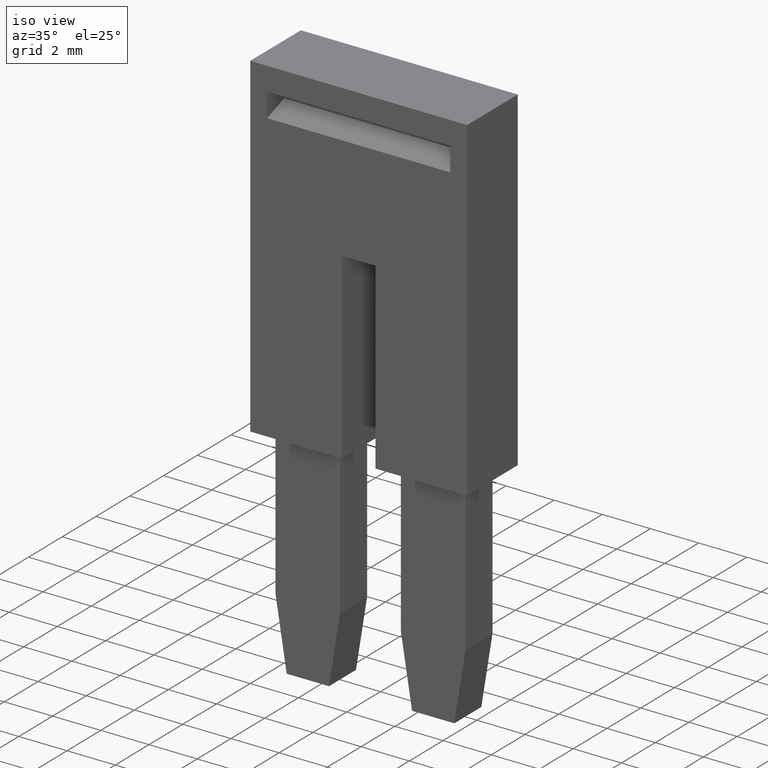
[diagram: clean part render]
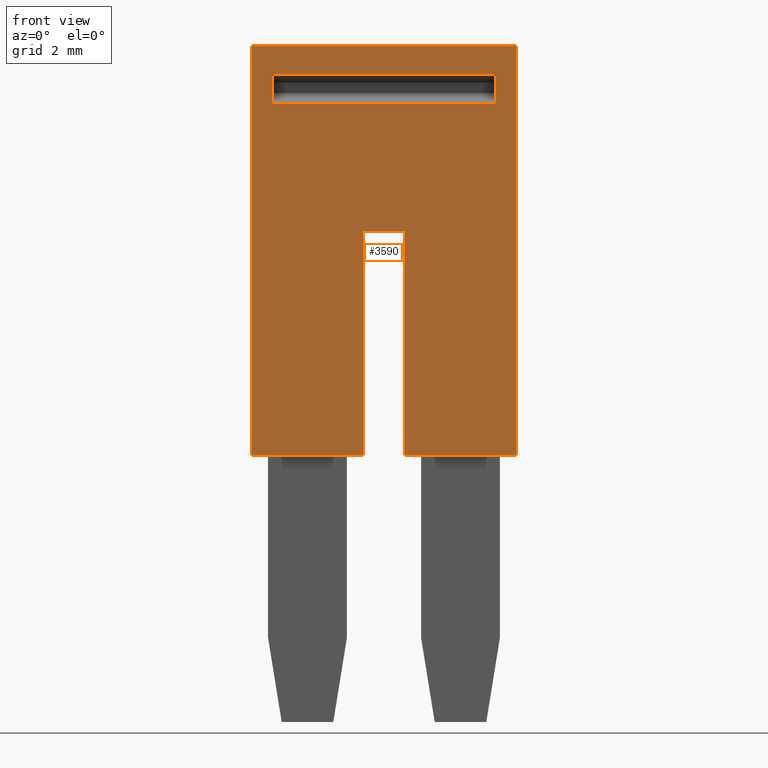
[diagram: tour spotlight — one face highlighted and labeled with its STEP entity id]
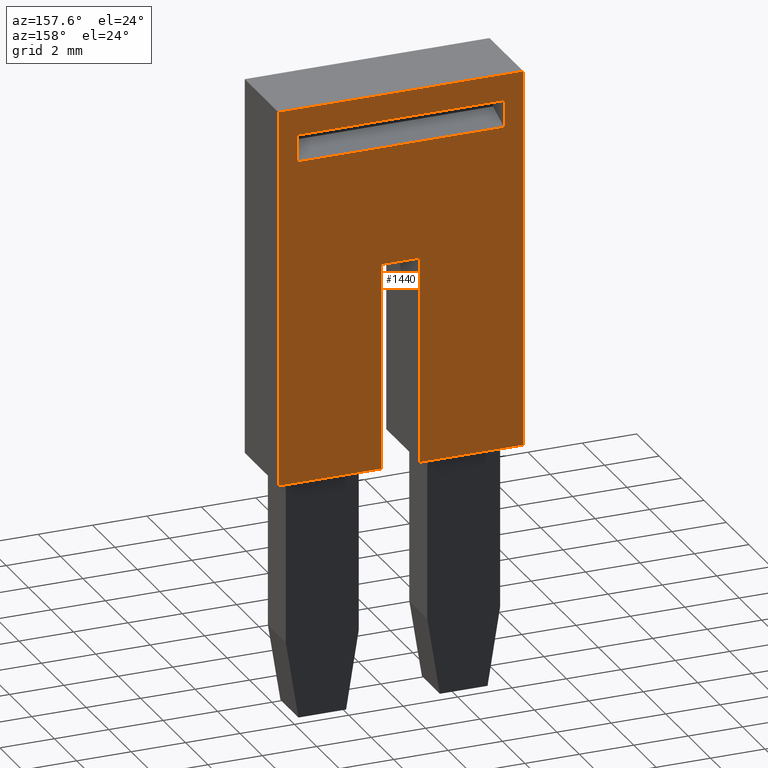
[diagram: tour spotlight — one face highlighted and labeled with its STEP entity id]
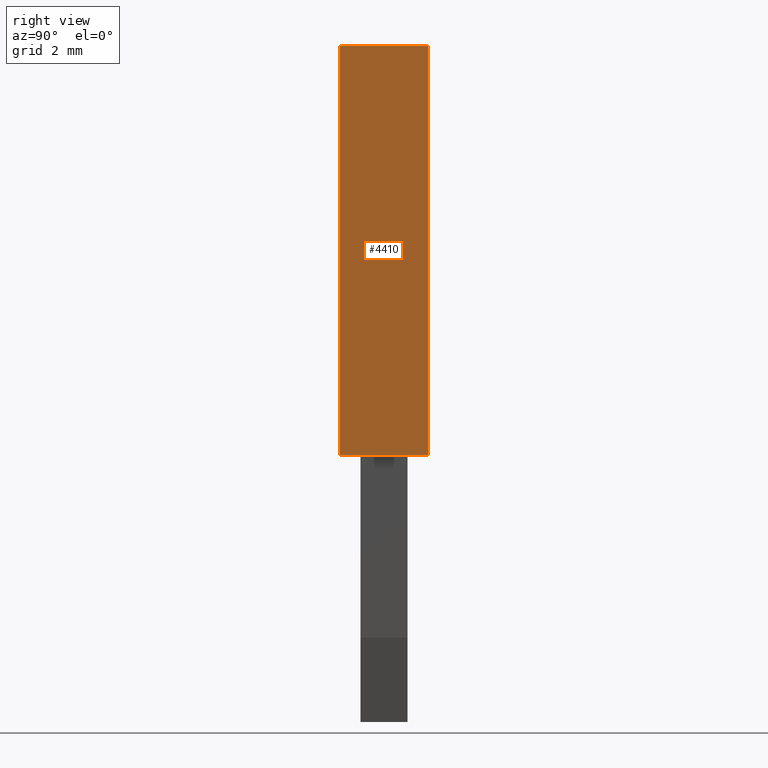
[diagram: tour spotlight — one face highlighted and labeled with its STEP entity id]
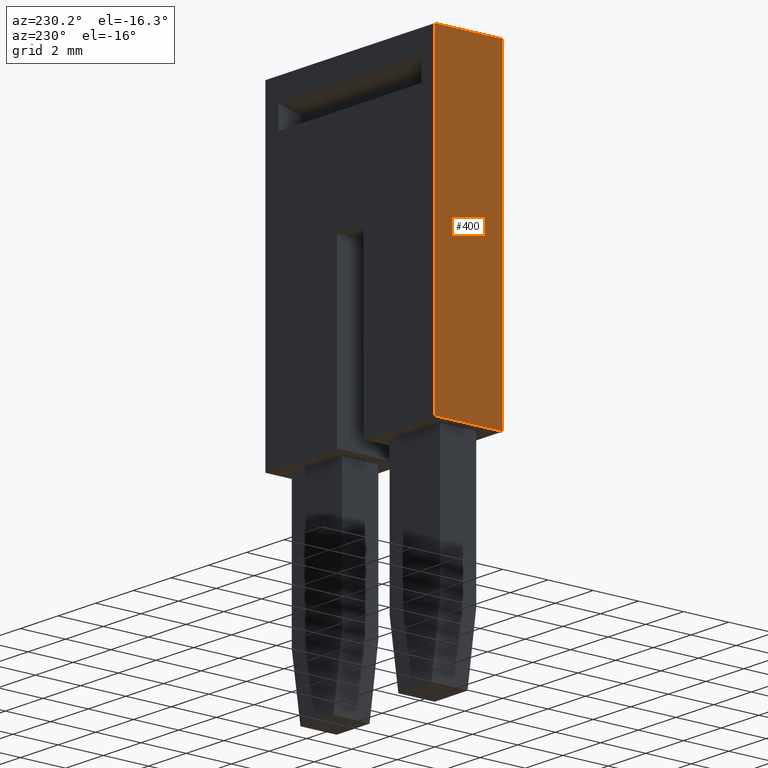
[diagram: tour spotlight — one face highlighted and labeled with its STEP entity id]
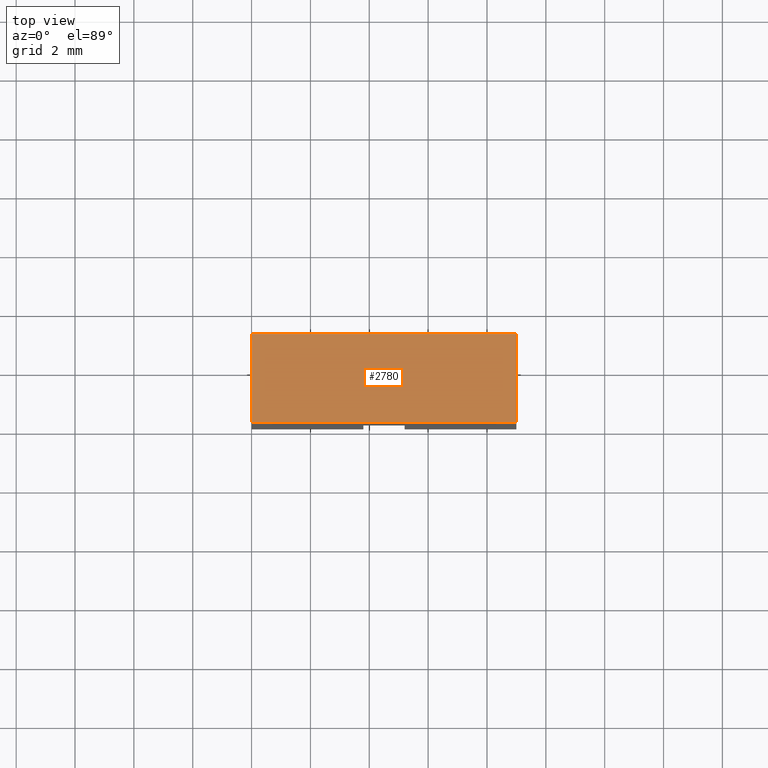
[diagram: tour spotlight — one face highlighted and labeled with its STEP entity id]
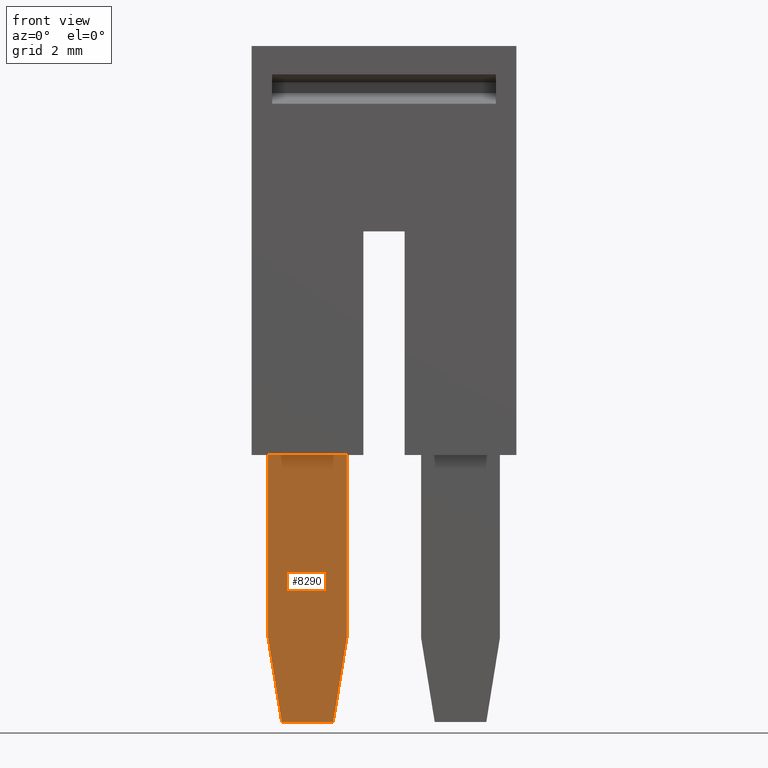
[diagram: tour spotlight — one face highlighted and labeled with its STEP entity id]
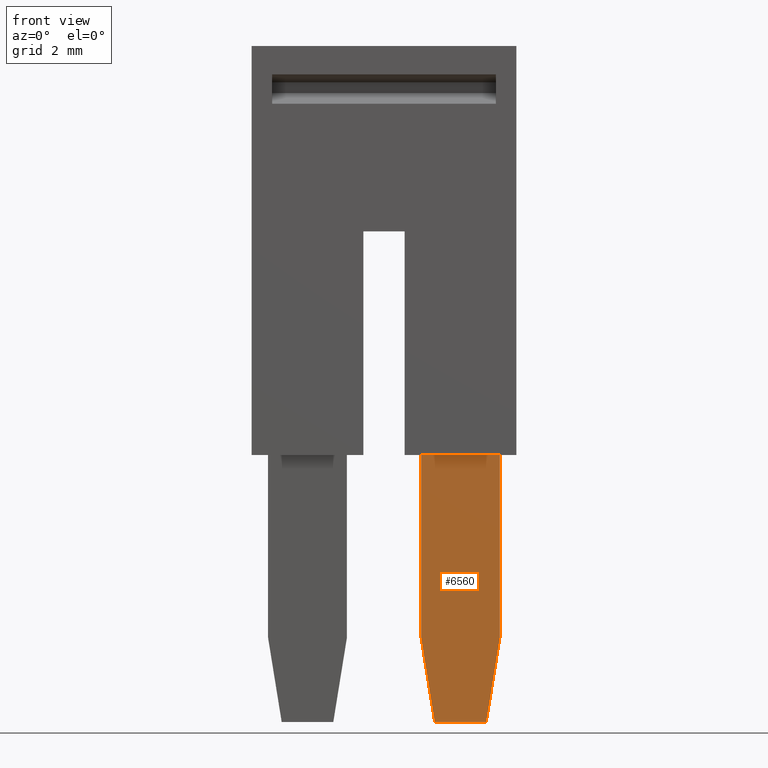
[diagram: tour spotlight — one face highlighted and labeled with its STEP entity id]
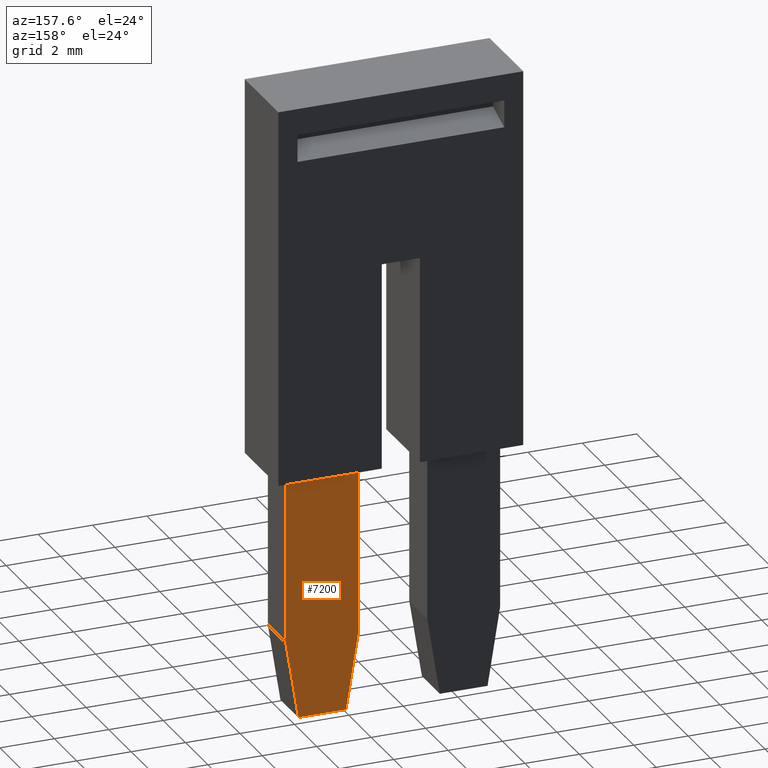
[diagram: tour spotlight — one face highlighted and labeled with its STEP entity id]
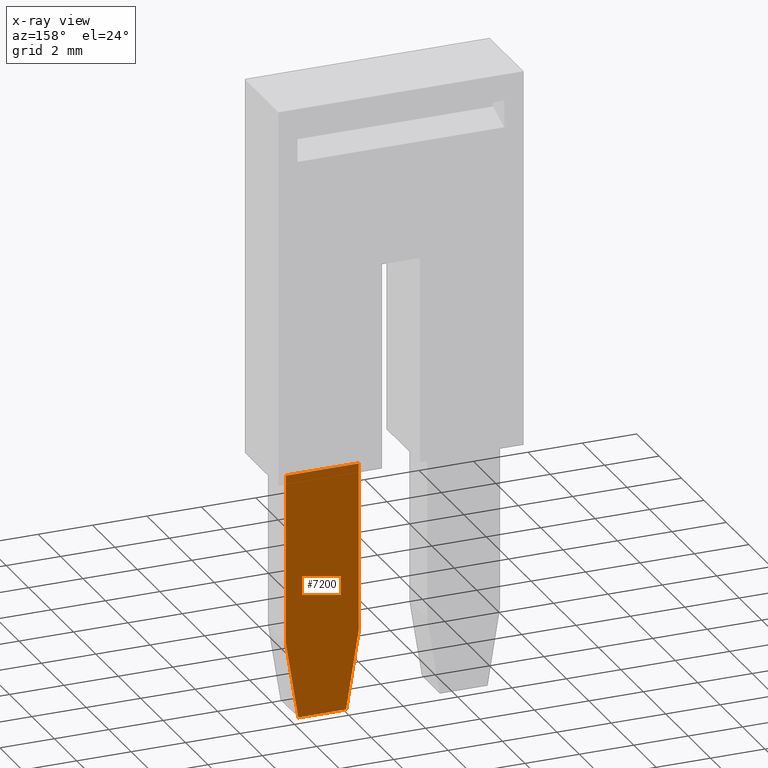
[diagram: x-ray of the same camera — body ghosted, this tour face saturated]
A machine part: a face-by-face anatomy tour. The part has 34 B-rep faces; the first image is the clean iso view, then the 8 largest visible faces are spotlighted one at a time (largest first), each with its STEP entity span.

Face 1 — front view, entity #3590. In plain terms, the highlighted planar face has unit normal (0, 1, 0).
Definition (entity closure, byte-faithful):
#200=CARTESIAN_POINT('',(2.6071672216846,-9.17500000000056,
49.3599999999988));
#210=VERTEX_POINT('',#200);
#240=CARTESIAN_POINT('',(2.60716722168503,-12.6051240000002,
49.3599999999988));
#250=DIRECTION('',(1.26010313294955E-13,-1.,-3.08148791101716E-33));
#260=VECTOR('',#250,1.);
#270=LINE('',#240,#260);
#280=CARTESIAN_POINT('',(2.60716722168635,-23.0750000000006,
49.3599999999988));
#290=VERTEX_POINT('',#280);
#300=EDGE_CURVE('',#210,#290,#270,.T.);
#1570=CARTESIAN_POINT('',(2.6071672216854,-15.4750000000006,
60.6450159999975));
#1580=DIRECTION('',(0.,-3.08148791101677E-33,1.));
#1590=VECTOR('',#1580,1.);
#1600=LINE('',#1570,#1590);
#1610=CARTESIAN_POINT('',(2.6071672216854,-15.4750000000006,
53.1599999999988));
#1620=VERTEX_POINT('',#1610);
#1630=CARTESIAN_POINT('',(2.6071672216854,-15.4750000000006,
54.5599999999988));
#1640=VERTEX_POINT('',#1630);
#1650=EDGE_CURVE('',#1620,#1640,#1600,.T.);
#2310=CARTESIAN_POINT('',(2.60716722168635,-23.0750000000006,
60.6450159999975));
#2320=DIRECTION('',(0.,3.08148791101677E-33,-1.));
#2330=VECTOR('',#2320,1.);
#2340=LINE('',#2310,#2330);
#2350=CARTESIAN_POINT('',(2.60716722168635,-23.0750000000006,
53.1599999999988));
#2360=VERTEX_POINT('',#2350);
#2370=EDGE_CURVE('',#2360,#290,#2340,.T.);
#2650=CARTESIAN_POINT('',(2.6071672216846,-9.17500000000056,
58.3599999999988));
#2660=VERTEX_POINT('',#2650);
#2690=CARTESIAN_POINT('',(2.6071672216846,-9.17500000000056,
60.6450159999975));
#2700=DIRECTION('',(0.,3.08148791101677E-33,-1.));
#2710=VECTOR('',#2700,1.);
#2720=LINE('',#2690,#2710);
#2730=EDGE_CURVE('',#2660,#210,#2720,.T.);
#2860=CARTESIAN_POINT('',(2.60716722168436,-7.23265100000016,
24.0999898000483));
#2870=DIRECTION('',(1.,1.26010313294955E-13,3.88299257081841E-46));
#2880=DIRECTION('',(1.26010313294955E-13,-1.,-3.08148791101716E-33));
#2890=AXIS2_PLACEMENT_3D('',#2860,#2870,#2880);
#2900=PLANE('',#2890);
#2910=CARTESIAN_POINT('',(2.60716722168485,-11.1389702342668,47.074984))
;
#2920=DIRECTION('',(-5.09267671146659E-30,4.04088134360551E-17,-1.));
#2930=VECTOR('',#2920,1.);
#2940=LINE('',#2910,#2930);
#2950=CARTESIAN_POINT('',(2.60716722168485,-11.1389702342668,
57.6599999999988));
#2960=VERTEX_POINT('',#2950);
#2970=CARTESIAN_POINT('',(2.60716722168485,-11.1389702342668,
50.0599999999988));
#2980=VERTEX_POINT('',#2970);
#2990=EDGE_CURVE('',#2960,#2980,#2940,.T.);
#3000=ORIENTED_EDGE('',*,*,#2990,.T.);
#3010=CARTESIAN_POINT('',(2.607167221685,-12.305124,57.6599999999988));
#3020=DIRECTION('',(1.26010313294955E-13,-1.,0.));
#3030=VECTOR('',#3020,1.);
#3040=LINE('',#3010,#3030);
#3050=CARTESIAN_POINT('',(2.60716722168472,-10.141025403785,
57.6599999999988));
#3060=VERTEX_POINT('',#3050);
#3070=EDGE_CURVE('',#3060,#2960,#3040,.T.);
#3080=ORIENTED_EDGE('',*,*,#3070,.T.);
#3090=CARTESIAN_POINT('',(2.60716722168472,-10.141025403785,47.074984));
#3100=DIRECTION('',(-3.74847446553773E-30,2.97483362866747E-17,1.));
#3110=VECTOR('',#3100,1.);
#3120=LINE('',#3090,#3110);
#3130=CARTESIAN_POINT('',(2.60716722168472,-10.141025403785,
50.0599999999988));
#3140=VERTEX_POINT('',#3130);
#3150=EDGE_CURVE('',#3140,#3060,#3120,.T.);
#3160=ORIENTED_EDGE('',*,*,#3150,.T.);
#3170=CARTESIAN_POINT('',(2.607167221685,-12.305124,50.0599999999988));
#3180=DIRECTION('',(-1.26010313294955E-13,1.,0.));
#3190=VECTOR('',#3180,1.);
#3200=LINE('',#3170,#3190);
#3210=EDGE_CURVE('',#2980,#3140,#3200,.T.);
#3220=ORIENTED_EDGE('',*,*,#3210,.T.);
#3230=EDGE_LOOP('',(#3220,#3160,#3080,#3000));
#3240=FACE_BOUND('',#3230,.T.);
#3250=CARTESIAN_POINT('',(2.60716722168503,-12.6051240000002,
58.3599999999988));
#3260=DIRECTION('',(1.26010313294955E-13,-1.,-3.08148791101716E-33));
#3270=VECTOR('',#3260,1.);
#3280=LINE('',#3250,#3270);
#3290=CARTESIAN_POINT('',(2.60716722168635,-23.0750000000006,
58.3599999999988));
#3300=VERTEX_POINT('',#3290);
#3310=EDGE_CURVE('',#2660,#3300,#3280,.T.);
#3320=ORIENTED_EDGE('',*,*,#3310,.F.);
#3330=CARTESIAN_POINT('',(2.60716722168635,-23.0750000000006,
60.6450159999975));
#3340=DIRECTION('',(0.,3.08148791101677E-33,-1.));
#3350=VECTOR('',#3340,1.);
#3360=LINE('',#3330,#3350);
#3370=CARTESIAN_POINT('',(2.60716722168635,-23.0750000000006,
54.5599999999988));
#3380=VERTEX_POINT('',#3370);
#3390=EDGE_CURVE('',#3300,#3380,#3360,.T.);
#3400=ORIENTED_EDGE('',*,*,#3390,.F.);
#3410=CARTESIAN_POINT('',(2.60716722168503,-12.6051240000002,
54.5599999999988));
#3420=DIRECTION('',(1.26010313294955E-13,-1.,-3.08148791101716E-33));
#3430=VECTOR('',#3420,1.);
#3440=LINE('',#3410,#3430);
#3450=EDGE_CURVE('',#1640,#3380,#3440,.T.);
#3460=ORIENTED_EDGE('',*,*,#3450,.T.);
#3470=ORIENTED_EDGE('',*,*,#1650,.T.);
#3480=CARTESIAN_POINT('',(2.60716722168503,-12.6051240000002,
53.1599999999988));
#3490=DIRECTION('',(1.26010313294955E-13,-1.,-3.08148791101716E-33));
#3500=VECTOR('',#3490,1.);
#3510=LINE('',#3480,#3500);
#3520=EDGE_CURVE('',#1620,#2360,#3510,.T.);
#3530=ORIENTED_EDGE('',*,*,#3520,.F.);
#3540=ORIENTED_EDGE('',*,*,#2370,.F.);
#3550=ORIENTED_EDGE('',*,*,#300,.T.);
#3560=ORIENTED_EDGE('',*,*,#2730,.T.);
#3570=EDGE_LOOP('',(#3560,#3550,#3540,#3530,#3470,#3460,#3400,#3320));
#3580=FACE_OUTER_BOUND('',#3570,.T.);
#3590=ADVANCED_FACE('',(#3240,#3580),#2900,.F.);

Face 2 — auxiliary view, entity #1440. In plain terms, the highlighted planar face has unit normal (0, 1, 0).
Definition (entity closure, byte-faithful):
#60=CARTESIAN_POINT('',(5.60716722168504,-12.6051239999998,
49.3599999999988));
#70=DIRECTION('',(1.26010313294955E-13,-1.,-3.08148791101716E-33));
#80=VECTOR('',#70,1.);
#90=LINE('',#60,#80);
#100=CARTESIAN_POINT('',(5.6071672216846,-9.17500000000018,
49.3599999999988));
#110=VERTEX_POINT('',#100);
#120=CARTESIAN_POINT('',(5.60716722168636,-23.0750000000002,
49.3599999999988));
#130=VERTEX_POINT('',#120);
#140=EDGE_CURVE('',#110,#130,#90,.T.);
#480=CARTESIAN_POINT('',(5.60716722168476,-10.4163739892137,
49.6255163824959));
#490=DIRECTION('',(1.,1.26010313294955E-13,3.88299257081841E-46));
#500=DIRECTION('',(1.26010313294955E-13,-1.,-3.08148791101716E-33));
#510=AXIS2_PLACEMENT_3D('',#480,#490,#500);
#520=PLANE('',#510);
#530=CARTESIAN_POINT('',(5.60716722168485,-11.1389702342664,47.074984));
#540=DIRECTION('',(5.08939746052553E-30,-4.04088134360551E-17,-1.));
#550=VECTOR('',#540,1.);
#560=LINE('',#530,#550);
#570=CARTESIAN_POINT('',(5.60716722168485,-11.1389702342664,
57.6599999999988));
#580=VERTEX_POINT('',#570);
#590=CARTESIAN_POINT('',(5.60716722168485,-11.1389702342664,
50.0599999999988));
#600=VERTEX_POINT('',#590);
#610=EDGE_CURVE('',#580,#600,#560,.T.);
#620=ORIENTED_EDGE('',*,*,#610,.F.);
#630=CARTESIAN_POINT('',(5.607167221685,-12.305124,50.0599999999988));
#640=DIRECTION('',(-1.26010313294955E-13,1.,0.));
#650=VECTOR('',#640,1.);
#660=LINE('',#630,#650);
#670=CARTESIAN_POINT('',(5.60716722168473,-10.1410254037846,
50.0599999999988));
#680=VERTEX_POINT('',#670);
#690=EDGE_CURVE('',#600,#680,#660,.T.);
#700=ORIENTED_EDGE('',*,*,#690,.F.);
#710=CARTESIAN_POINT('',(5.60716722168473,-10.1410254037846,47.074984));
#720=DIRECTION('',(3.74687937002048E-30,-2.97483362866748E-17,1.));
#730=VECTOR('',#720,1.);
#740=LINE('',#710,#730);
#750=CARTESIAN_POINT('',(5.60716722168473,-10.1410254037846,
57.6599999999988));
#760=VERTEX_POINT('',#750);
#770=EDGE_CURVE('',#680,#760,#740,.T.);
#780=ORIENTED_EDGE('',*,*,#770,.F.);
#790=CARTESIAN_POINT('',(5.607167221685,-12.305124,57.6599999999988));
#800=DIRECTION('',(1.26010313294955E-13,-1.,0.));
#810=VECTOR('',#800,1.);
#820=LINE('',#790,#810);
#830=EDGE_CURVE('',#760,#580,#820,.T.);
#840=ORIENTED_EDGE('',*,*,#830,.F.);
#850=EDGE_LOOP('',(#840,#780,#700,#620));
#860=FACE_BOUND('',#850,.T.);
#870=ORIENTED_EDGE('',*,*,#140,.F.);
#880=CARTESIAN_POINT('',(5.60716722168636,-23.0750000000002,
60.6450159999975));
#890=DIRECTION('',(0.,3.08148791101677E-33,-1.));
#900=VECTOR('',#890,1.);
#910=LINE('',#880,#900);
#920=CARTESIAN_POINT('',(5.60716722168636,-23.0750000000002,
53.1599999999988));
#930=VERTEX_POINT('',#920);
#940=EDGE_CURVE('',#930,#130,#910,.T.);
#950=ORIENTED_EDGE('',*,*,#940,.T.);
#960=CARTESIAN_POINT('',(5.60716722168504,-12.6051239999998,
53.1599999999988));
#970=DIRECTION('',(1.26010313294955E-13,-1.,-3.08148791101716E-33));
#980=VECTOR('',#970,1.);
#990=LINE('',#960,#980);
#1000=CARTESIAN_POINT('',(5.6071672216854,-15.4750000000002,
53.1599999999988));
#1010=VERTEX_POINT('',#1000);
#1020=EDGE_CURVE('',#1010,#930,#990,.T.);
#1030=ORIENTED_EDGE('',*,*,#1020,.T.);
#1040=CARTESIAN_POINT('',(5.6071672216854,-15.4750000000002,
60.6450159999975));
#1050=DIRECTION('',(0.,-3.08148791101677E-33,1.));
#1060=VECTOR('',#1050,1.);
#1070=LINE('',#1040,#1060);
#1080=CARTESIAN_POINT('',(5.6071672216854,-15.4750000000002,
54.5599999999988));
#1090=VERTEX_POINT('',#1080);
#1100=EDGE_CURVE('',#1010,#1090,#1070,.T.);
#1110=ORIENTED_EDGE('',*,*,#1100,.F.);
#1120=CARTESIAN_POINT('',(5.60716722168504,-12.6051239999998,
54.5599999999988));
#1130=DIRECTION('',(1.26010313294955E-13,-1.,-3.08148791101716E-33));
#1140=VECTOR('',#1130,1.);
#1150=LINE('',#1120,#1140);
#1160=CARTESIAN_POINT('',(5.60716722168636,-23.0750000000002,
54.5599999999988));
#1170=VERTEX_POINT('',#1160);
#1180=EDGE_CURVE('',#1090,#1170,#1150,.T.);
#1190=ORIENTED_EDGE('',*,*,#1180,.F.);
#1200=CARTESIAN_POINT('',(5.60716722168636,-23.0750000000002,
60.6450159999975));
#1210=DIRECTION('',(0.,3.08148791101677E-33,-1.));
#1220=VECTOR('',#1210,1.);
#1230=LINE('',#1200,#1220);
#1240=CARTESIAN_POINT('',(5.60716722168636,-23.0750000000002,
58.3599999999988));
#1250=VERTEX_POINT('',#1240);
#1260=EDGE_CURVE('',#1250,#1170,#1230,.T.);
#1270=ORIENTED_EDGE('',*,*,#1260,.T.);
#1280=CARTESIAN_POINT('',(5.60716722168504,-12.6051239999998,
58.3599999999988));
#1290=DIRECTION('',(1.26010313294955E-13,-1.,-3.08148791101716E-33));
#1300=VECTOR('',#1290,1.);
#1310=LINE('',#1280,#1300);
#1320=CARTESIAN_POINT('',(5.6071672216846,-9.17500000000018,
58.3599999999988));
#1330=VERTEX_POINT('',#1320);
#1340=EDGE_CURVE('',#1330,#1250,#1310,.T.);
#1350=ORIENTED_EDGE('',*,*,#1340,.T.);
#1360=CARTESIAN_POINT('',(5.60716722168461,-9.17500000000018,
60.6450159999975));
#1370=DIRECTION('',(0.,-3.08148791101677E-33,1.));
#1380=VECTOR('',#1370,1.);
#1390=LINE('',#1360,#1380);
#1400=EDGE_CURVE('',#110,#1330,#1390,.T.);
#1410=ORIENTED_EDGE('',*,*,#1400,.T.);
#1420=EDGE_LOOP('',(#1410,#1350,#1270,#1190,#1110,#1030,#950,#870));
#1430=FACE_OUTER_BOUND('',#1420,.T.);
#1440=ADVANCED_FACE('',(#860,#1430),#520,.T.);

Face 3 — right view, entity #4410. In plain terms, the highlighted planar face has unit normal (1, -0, -0).
Definition (entity closure, byte-faithful):
#1240=CARTESIAN_POINT('',(5.60716722168636,-23.0750000000002,
58.3599999999988));
#1250=VERTEX_POINT('',#1240);
#1280=CARTESIAN_POINT('',(5.60716722168504,-12.6051239999998,
58.3599999999988));
#1290=DIRECTION('',(1.26010313294955E-13,-1.,-3.08148791101716E-33));
#1300=VECTOR('',#1290,1.);
#1310=LINE('',#1280,#1300);
#1320=CARTESIAN_POINT('',(5.6071672216846,-9.17500000000018,
58.3599999999988));
#1330=VERTEX_POINT('',#1320);
#1340=EDGE_CURVE('',#1330,#1250,#1310,.T.);
#2610=CARTESIAN_POINT('',(2.60716722168461,-9.17500000000056,
58.3599999999988));
#2620=DIRECTION('',(1.,1.26010313294955E-13,0.));
#2630=VECTOR('',#2620,1.);
#2640=LINE('',#2610,#2630);
#2650=CARTESIAN_POINT('',(2.6071672216846,-9.17500000000056,
58.3599999999988));
#2660=VERTEX_POINT('',#2650);
#2670=EDGE_CURVE('',#2660,#1330,#2640,.T.);
#3250=CARTESIAN_POINT('',(2.60716722168503,-12.6051240000002,
58.3599999999988));
#3260=DIRECTION('',(1.26010313294955E-13,-1.,-3.08148791101716E-33));
#3270=VECTOR('',#3260,1.);
#3280=LINE('',#3250,#3270);
#3290=CARTESIAN_POINT('',(2.60716722168635,-23.0750000000006,
58.3599999999988));
#3300=VERTEX_POINT('',#3290);
#3310=EDGE_CURVE('',#2660,#3300,#3280,.T.);
#4070=CARTESIAN_POINT('',(2.60716722168637,-23.0750000000006,
58.3599999999988));
#4080=DIRECTION('',(-1.,-1.26010313294955E-13,0.));
#4090=VECTOR('',#4080,1.);
#4100=LINE('',#4070,#4090);
#4110=EDGE_CURVE('',#1250,#3300,#4100,.T.);
#4300=CARTESIAN_POINT('',(5.60716722168464,-9.47500000000018,
58.3599999999988));
#4310=DIRECTION('',(3.8829925708189E-46,-3.08148791101716E-33,1.));
#4320=DIRECTION('',(-1.26010313294955E-13,1.,3.08148791101716E-33));
#4330=AXIS2_PLACEMENT_3D('',#4300,#4310,#4320);
#4340=PLANE('',#4330);
#4350=ORIENTED_EDGE('',*,*,#4110,.F.);
#4360=ORIENTED_EDGE('',*,*,#3310,.T.);
#4370=ORIENTED_EDGE('',*,*,#2670,.F.);
#4380=ORIENTED_EDGE('',*,*,#1340,.F.);
#4390=EDGE_LOOP('',(#4380,#4370,#4360,#4350));
#4400=FACE_OUTER_BOUND('',#4390,.T.);
#4410=ADVANCED_FACE('',(#4400),#4340,.T.);

Face 4 — auxiliary view, entity #400. In plain terms, the highlighted planar face has unit normal (1, -0, -0).
Definition (entity closure, byte-faithful):
#10=CARTESIAN_POINT('',(4.28576854106636,-14.1209712127693,
49.3599999999988));
#20=DIRECTION('',(3.8829925708189E-46,-3.08148791101716E-33,1.));
#30=DIRECTION('',(1.,1.26010313294955E-13,0.));
#40=AXIS2_PLACEMENT_3D('',#10,#20,#30);
#50=PLANE('',#40);
#60=CARTESIAN_POINT('',(5.60716722168504,-12.6051239999998,
49.3599999999988));
#70=DIRECTION('',(1.26010313294955E-13,-1.,-3.08148791101716E-33));
#80=VECTOR('',#70,1.);
#90=LINE('',#60,#80);
#100=CARTESIAN_POINT('',(5.6071672216846,-9.17500000000018,
49.3599999999988));
#110=VERTEX_POINT('',#100);
#120=CARTESIAN_POINT('',(5.60716722168636,-23.0750000000002,
49.3599999999988));
#130=VERTEX_POINT('',#120);
#140=EDGE_CURVE('',#110,#130,#90,.T.);
#150=ORIENTED_EDGE('',*,*,#140,.T.);
#160=CARTESIAN_POINT('',(5.60716722168535,-9.17500000000018,
49.3599999999988));
#170=DIRECTION('',(1.,1.26010313294955E-13,0.));
#180=VECTOR('',#170,1.);
#190=LINE('',#160,#180);
#200=CARTESIAN_POINT('',(2.6071672216846,-9.17500000000056,
49.3599999999988));
#210=VERTEX_POINT('',#200);
#220=EDGE_CURVE('',#210,#110,#190,.T.);
#230=ORIENTED_EDGE('',*,*,#220,.T.);
#240=CARTESIAN_POINT('',(2.60716722168503,-12.6051240000002,
49.3599999999988));
#250=DIRECTION('',(1.26010313294955E-13,-1.,-3.08148791101716E-33));
#260=VECTOR('',#250,1.);
#270=LINE('',#240,#260);
#280=CARTESIAN_POINT('',(2.60716722168635,-23.0750000000006,
49.3599999999988));
#290=VERTEX_POINT('',#280);
#300=EDGE_CURVE('',#210,#290,#270,.T.);
#310=ORIENTED_EDGE('',*,*,#300,.F.);
#320=CARTESIAN_POINT('',(5.60716722168535,-23.0750000000002,
49.3599999999988));
#330=DIRECTION('',(1.,1.26010313294955E-13,0.));
#340=VECTOR('',#330,1.);
#350=LINE('',#320,#340);
#360=EDGE_CURVE('',#290,#130,#350,.T.);
#370=ORIENTED_EDGE('',*,*,#360,.F.);
#380=EDGE_LOOP('',(#370,#310,#230,#150));
#390=FACE_OUTER_BOUND('',#380,.T.);
#400=ADVANCED_FACE('',(#390),#50,.F.);

Face 5 — top view, entity #2780. In plain terms, the highlighted planar face has unit normal (-0, -0, 1).
Definition (entity closure, byte-faithful):
#100=CARTESIAN_POINT('',(5.6071672216846,-9.17500000000018,
49.3599999999988));
#110=VERTEX_POINT('',#100);
#160=CARTESIAN_POINT('',(5.60716722168535,-9.17500000000018,
49.3599999999988));
#170=DIRECTION('',(1.,1.26010313294955E-13,0.));
#180=VECTOR('',#170,1.);
#190=LINE('',#160,#180);
#200=CARTESIAN_POINT('',(2.6071672216846,-9.17500000000056,
49.3599999999988));
#210=VERTEX_POINT('',#200);
#220=EDGE_CURVE('',#210,#110,#190,.T.);
#1320=CARTESIAN_POINT('',(5.6071672216846,-9.17500000000018,
58.3599999999988));
#1330=VERTEX_POINT('',#1320);
#1360=CARTESIAN_POINT('',(5.60716722168461,-9.17500000000018,
60.6450159999975));
#1370=DIRECTION('',(0.,-3.08148791101677E-33,1.));
#1380=VECTOR('',#1370,1.);
#1390=LINE('',#1360,#1380);
#1400=EDGE_CURVE('',#110,#1330,#1390,.T.);
#2550=CARTESIAN_POINT('',(5.60716722168461,-9.17500000000018,
78.8599999999988));
#2560=DIRECTION('',(-1.26010313294955E-13,1.,3.08148791101677E-33));
#2570=DIRECTION('',(0.,3.08148791101677E-33,-1.));
#2580=AXIS2_PLACEMENT_3D('',#2550,#2560,#2570);
#2590=PLANE('',#2580);
#2600=ORIENTED_EDGE('',*,*,#1400,.F.);
#2610=CARTESIAN_POINT('',(2.60716722168461,-9.17500000000056,
58.3599999999988));
#2620=DIRECTION('',(1.,1.26010313294955E-13,0.));
#2630=VECTOR('',#2620,1.);
#2640=LINE('',#2610,#2630);
#2650=CARTESIAN_POINT('',(2.6071672216846,-9.17500000000056,
58.3599999999988));
#2660=VERTEX_POINT('',#2650);
#2670=EDGE_CURVE('',#2660,#1330,#2640,.T.);
#2680=ORIENTED_EDGE('',*,*,#2670,.T.);
#2690=CARTESIAN_POINT('',(2.6071672216846,-9.17500000000056,
60.6450159999975));
#2700=DIRECTION('',(0.,3.08148791101677E-33,-1.));
#2710=VECTOR('',#2700,1.);
#2720=LINE('',#2690,#2710);
#2730=EDGE_CURVE('',#2660,#210,#2720,.T.);
#2740=ORIENTED_EDGE('',*,*,#2730,.F.);
#2750=ORIENTED_EDGE('',*,*,#220,.F.);
#2760=EDGE_LOOP('',(#2750,#2740,#2680,#2600));
#2770=FACE_OUTER_BOUND('',#2760,.T.);
#2780=ADVANCED_FACE('',(#2770),#2590,.T.);

Face 6 — front view, entity #8290. In plain terms, the highlighted planar face has unit normal (-0, -1, -0).
Definition (entity closure, byte-faithful):
#1990=CARTESIAN_POINT('',(3.30716722167658,-23.0750000000005,
52.5999999987961));
#2000=VERTEX_POINT('',#1990);
#2050=CARTESIAN_POINT('',(3.30716722167659,-23.0750000000005,47.074984))
;
#2060=DIRECTION('',(8.57252759403298E-16,1.07975336402126E-28,-1.));
#2070=VECTOR('',#2060,1.);
#2080=LINE('',#2050,#2070);
#2090=CARTESIAN_POINT('',(3.30716722167659,-23.0750000000005,
49.9199999990358));
#2100=VERTEX_POINT('',#2090);
#2110=EDGE_CURVE('',#2000,#2100,#2080,.T.);
#5450=CARTESIAN_POINT('',(3.30716722167737,-29.2807420639551,
52.5999999987961));
#5460=VERTEX_POINT('',#5450);
#5490=CARTESIAN_POINT('',(3.30716722167523,-12.305124,52.5999999987961))
;
#5500=DIRECTION('',(1.26010313294958E-13,-1.,-2.37897214115556E-16));
#5510=VECTOR('',#5500,1.);
#5520=LINE('',#5490,#5510);
#5530=EDGE_CURVE('',#2000,#5460,#5520,.T.);
#6190=CARTESIAN_POINT('',(3.30716722167535,-13.2750000000013,
53.8599999999985));
#6200=DIRECTION('',(-1.,-1.26010313294958E-13,-8.57252759403298E-16));
#6210=DIRECTION('',(-8.57252759384976E-16,-1.45401068734245E-13,1.));
#6220=AXIS2_PLACEMENT_3D('',#6190,#6200,#6210);
#6230=PLANE('',#6220);
#7770=CARTESIAN_POINT('',(3.30716722167523,-12.305124,49.9199999990342))
;
#7780=DIRECTION('',(-1.26010313294958E-13,1.,-1.44925274306014E-13));
#7790=VECTOR('',#7780,1.);
#7800=LINE('',#7770,#7790);
#7810=CARTESIAN_POINT('',(3.30716722167737,-29.2807420542218,
49.9199999990367));
#7820=VERTEX_POINT('',#7810);
#7830=EDGE_CURVE('',#7820,#2100,#7800,.T.);
#8020=ORIENTED_EDGE('',*,*,#2110,.T.);
#8030=ORIENTED_EDGE('',*,*,#5530,.F.);
#8040=CARTESIAN_POINT('',(3.30716722167523,-12.305124,55.3404020769722))
;
#8050=DIRECTION('',(-1.24539267787327E-13,0.987219178105449,
0.159368423411924));
#8060=VECTOR('',#8050,1.);
#8070=LINE('',#8040,#8060);
#8080=CARTESIAN_POINT('',(3.30716722167773,-32.1500000022977,
52.136810948039));
#8090=VERTEX_POINT('',#8080);
#8100=EDGE_CURVE('',#8090,#5460,#8070,.T.);
#8110=ORIENTED_EDGE('',*,*,#8100,.T.);
#8120=CARTESIAN_POINT('',(3.30716722167773,-32.1500000000054,
53.4602658398145));
#8130=DIRECTION('',(-8.57252759421504E-16,1.44485161757993E-13,1.));
#8140=VECTOR('',#8130,1.);
#8150=LINE('',#8120,#8140);
#8160=CARTESIAN_POINT('',(3.30716722167773,-32.1500000022979,
50.383189051365));
#8170=VERTEX_POINT('',#8160);
#8180=EDGE_CURVE('',#8170,#8090,#8150,.T.);
#8190=ORIENTED_EDGE('',*,*,#8180,.T.);
#8200=CARTESIAN_POINT('',(3.30716722167523,-12.305124,47.1795979224318))
;
#8210=DIRECTION('',(-1.24261712031171E-13,0.987219178105449,
-0.159368423411923));
#8220=VECTOR('',#8210,1.);
#8230=LINE('',#8200,#8220);
#8240=EDGE_CURVE('',#8170,#7820,#8230,.T.);
#8250=ORIENTED_EDGE('',*,*,#8240,.F.);
#8260=ORIENTED_EDGE('',*,*,#7830,.F.);
#8270=EDGE_LOOP('',(#8260,#8250,#8190,#8110,#8030,#8020));
#8280=FACE_OUTER_BOUND('',#8270,.T.);
#8290=ADVANCED_FACE('',(#8280),#6230,.T.);

Face 7 — front view, entity #6560. In plain terms, the highlighted planar face has unit normal (-0, -1, -0).
Definition (entity closure, byte-faithful):
#3780=CARTESIAN_POINT('',(3.30716722167658,-23.0750000000005,
55.1199999990359));
#3790=VERTEX_POINT('',#3780);
#3940=CARTESIAN_POINT('',(3.30716722167658,-23.0750000000005,
57.7999999990348));
#3950=VERTEX_POINT('',#3940);
#3980=CARTESIAN_POINT('',(3.30716722167659,-23.0750000000005,47.074984))
;
#3990=DIRECTION('',(8.57252759403298E-16,1.07975336402126E-28,-1.));
#4000=VECTOR('',#3990,1.);
#4010=LINE('',#3980,#4000);
#4020=EDGE_CURVE('',#3950,#3790,#4010,.T.);
#4920=CARTESIAN_POINT('',(3.30716722167523,-12.305124,52.3795979224317))
;
#4930=DIRECTION('',(-1.24261712031171E-13,0.987219178105449,
-0.159368423411923));
#4940=VECTOR('',#4930,1.);
#4950=LINE('',#4920,#4940);
#4960=CARTESIAN_POINT('',(3.30716722167773,-32.1500000022972,
55.5831890513648));
#4970=VERTEX_POINT('',#4960);
#4980=CARTESIAN_POINT('',(3.30716722167736,-29.2807420542178,
55.1199999990359));
#4990=VERTEX_POINT('',#4980);
#5000=EDGE_CURVE('',#4970,#4990,#4950,.T.);
#6190=CARTESIAN_POINT('',(3.30716722167535,-13.2750000000013,
53.8599999999985));
#6200=DIRECTION('',(-1.,-1.26010313294958E-13,-8.57252759403298E-16));
#6210=DIRECTION('',(-8.57252759384976E-16,-1.45401068734245E-13,1.));
#6220=AXIS2_PLACEMENT_3D('',#6190,#6200,#6210);
#6230=PLANE('',#6220);
#6240=CARTESIAN_POINT('',(3.30716722167522,-12.305124,57.7999999990348))
;
#6250=DIRECTION('',(-1.26010313294958E-13,1.,-9.11930314421364E-17));
#6260=VECTOR('',#6250,1.);
#6270=LINE('',#6240,#6260);
#6280=CARTESIAN_POINT('',(3.30716722167736,-29.2807420624753,
57.7999999990348));
#6290=VERTEX_POINT('',#6280);
#6300=EDGE_CURVE('',#6290,#3950,#6270,.T.);
#6310=ORIENTED_EDGE('',*,*,#6300,.T.);
#6320=CARTESIAN_POINT('',(3.30716722167522,-12.305124,60.5404020769721))
;
#6330=DIRECTION('',(-1.24539267787327E-13,0.987219178105449,
0.159368423411924));
#6340=VECTOR('',#6330,1.);
#6350=LINE('',#6320,#6340);
#6360=CARTESIAN_POINT('',(3.30716722167772,-32.150000002297,
57.336810948039));
#6370=VERTEX_POINT('',#6360);
#6380=EDGE_CURVE('',#6370,#6290,#6350,.T.);
#6390=ORIENTED_EDGE('',*,*,#6380,.T.);
#6400=CARTESIAN_POINT('',(3.30716722167772,-32.1500000000062,
58.6602658398145));
#6410=DIRECTION('',(-8.57252759421504E-16,1.44485161757993E-13,1.));
#6420=VECTOR('',#6410,1.);
#6430=LINE('',#6400,#6420);
#6440=EDGE_CURVE('',#4970,#6370,#6430,.T.);
#6450=ORIENTED_EDGE('',*,*,#6440,.T.);
#6460=ORIENTED_EDGE('',*,*,#5000,.F.);
#6470=CARTESIAN_POINT('',(3.30716722167523,-12.305124,55.1199999990359))
;
#6480=DIRECTION('',(-1.26010313294958E-13,1.,-2.37897214115543E-16));
#6490=VECTOR('',#6480,1.);
#6500=LINE('',#6470,#6490);
#6510=EDGE_CURVE('',#4990,#3790,#6500,.T.);
#6520=ORIENTED_EDGE('',*,*,#6510,.F.);
#6530=ORIENTED_EDGE('',*,*,#4020,.T.);
#6540=EDGE_LOOP('',(#6530,#6520,#6460,#6450,#6390,#6310));
#6550=FACE_OUTER_BOUND('',#6540,.T.);
#6560=ADVANCED_FACE('',(#6550),#6230,.T.);

Face 8 — auxiliary view, entity #7200. An x-ray twin of the same camera follows (body ghosted, this face saturated) — the face is partly hidden behind the body. In plain terms, the highlighted planar face has unit normal (-0, -1, -0).
Definition (entity closure, byte-faithful):
#3760=CARTESIAN_POINT('',(4.90716722167658,-23.0750000000003,
55.1199999990359));
#3770=VERTEX_POINT('',#3760);
#3820=CARTESIAN_POINT('',(4.90716722167659,-23.0750000000003,47.074984))
;
#3830=DIRECTION('',(8.57252759403298E-16,1.07975336402126E-28,-1.));
#3840=VECTOR('',#3830,1.);
#3850=LINE('',#3820,#3840);
#3860=CARTESIAN_POINT('',(4.90716722167658,-23.0750000000003,
57.7999999990348));
#3870=VERTEX_POINT('',#3860);
#3880=EDGE_CURVE('',#3870,#3770,#3850,.T.);
#5060=CARTESIAN_POINT('',(4.90716722167773,-32.150000002297,
55.5831890513648));
#5070=VERTEX_POINT('',#5060);
#5100=CARTESIAN_POINT('',(4.90716722167523,-12.305124,52.3795979224317))
;
#5110=DIRECTION('',(-1.24261712031171E-13,0.987219178105449,
-0.159368423411923));
#5120=VECTOR('',#5110,1.);
#5130=LINE('',#5100,#5120);
#5140=CARTESIAN_POINT('',(4.90716722167736,-29.2807420542176,
55.1199999990359));
#5150=VERTEX_POINT('',#5140);
#5160=EDGE_CURVE('',#5070,#5150,#5130,.T.);
#5720=CARTESIAN_POINT('',(4.90716722167535,-13.2750000000011,
53.8599999999985));
#5730=DIRECTION('',(-1.,-1.26010313294958E-13,-8.57252759403298E-16));
#5740=DIRECTION('',(-8.57252759384976E-16,-1.45401068734245E-13,1.));
#5750=AXIS2_PLACEMENT_3D('',#5720,#5730,#5740);
#5760=PLANE('',#5750);
#6730=CARTESIAN_POINT('',(4.90716722167736,-29.2807420624751,
57.7999999990348));
#6740=VERTEX_POINT('',#6730);
#6790=CARTESIAN_POINT('',(4.90716722167522,-12.305124,57.7999999990348))
;
#6800=DIRECTION('',(-1.26010313294958E-13,1.,-9.11930314421364E-17));
#6810=VECTOR('',#6800,1.);
#6820=LINE('',#6790,#6810);
#6830=EDGE_CURVE('',#6740,#3870,#6820,.T.);
#6950=CARTESIAN_POINT('',(4.90716722167523,-12.305124,55.1199999990359))
;
#6960=DIRECTION('',(-1.26010313294958E-13,1.,-2.37897214115543E-16));
#6970=VECTOR('',#6960,1.);
#6980=LINE('',#6950,#6970);
#6990=EDGE_CURVE('',#5150,#3770,#6980,.T.);
#7000=ORIENTED_EDGE('',*,*,#6990,.T.);
#7010=ORIENTED_EDGE('',*,*,#5160,.T.);
#7020=CARTESIAN_POINT('',(4.90716722167772,-32.150000000006,
58.6602658398145));
#7030=DIRECTION('',(-8.57252759421504E-16,1.44485161757993E-13,1.));
#7040=VECTOR('',#7030,1.);
#7050=LINE('',#7020,#7040);
#7060=CARTESIAN_POINT('',(4.90716722167772,-32.1500000022968,
57.336810948039));
#7070=VERTEX_POINT('',#7060);
#7080=EDGE_CURVE('',#5070,#7070,#7050,.T.);
#7090=ORIENTED_EDGE('',*,*,#7080,.F.);
#7100=CARTESIAN_POINT('',(4.90716722167522,-12.305124,60.540402076972));
#7110=DIRECTION('',(-1.24539267787327E-13,0.987219178105449,
0.159368423411924));
#7120=VECTOR('',#7110,1.);
#7130=LINE('',#7100,#7120);
#7140=EDGE_CURVE('',#7070,#6740,#7130,.T.);
#7150=ORIENTED_EDGE('',*,*,#7140,.F.);
#7160=ORIENTED_EDGE('',*,*,#6830,.F.);
#7170=ORIENTED_EDGE('',*,*,#3880,.F.);
#7180=EDGE_LOOP('',(#7170,#7160,#7150,#7090,#7010,#7000));
#7190=FACE_OUTER_BOUND('',#7180,.T.);
#7200=ADVANCED_FACE('',(#7190),#5760,.F.);